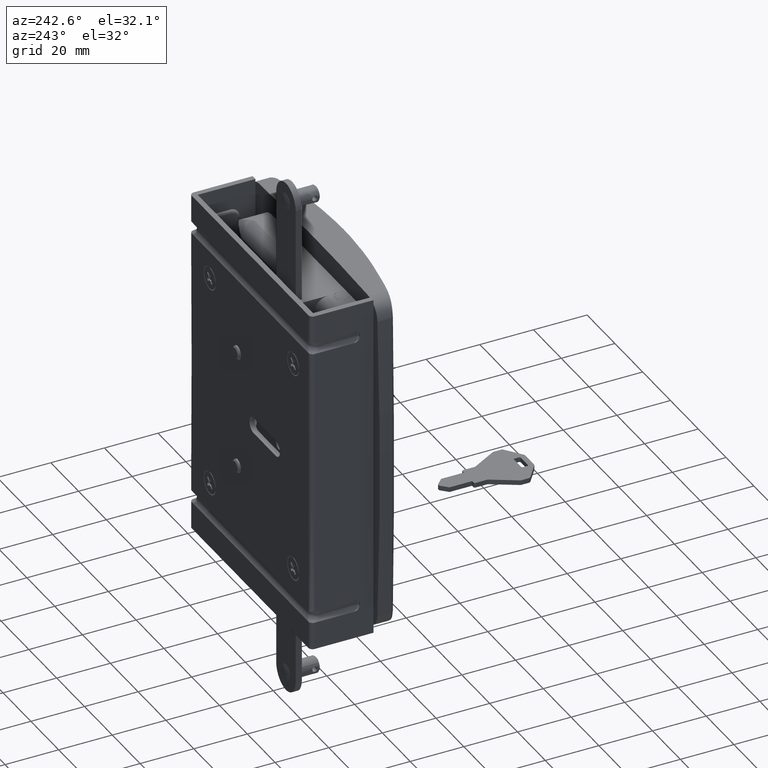
[diagram: clean part render]
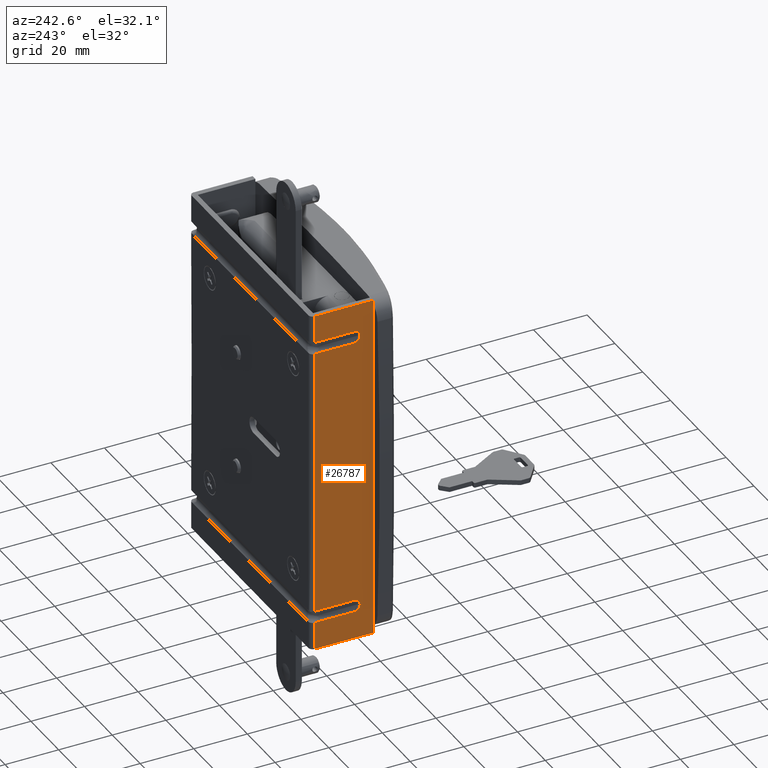
[diagram: same view with one face highlighted and labeled with its STEP entity id]
A machine part, auxiliary view. The second image highlights one B-rep face of the part: STEP entity #26787.
In plain terms, the highlighted face is a freeform B-spline surface patch.
Its self-contained STEP definition (entity closure, byte-faithful):
#18139=CARTESIAN_POINT('',(3.500008000000090,22.500000000000000,-65.0));
#18140=VERTEX_POINT('',#18139);
#18153=CARTESIAN_POINT('',(3.500008000000090,22.500000000000799,-54.739134594214100));
#18154=VERTEX_POINT('',#18153);
#18155=CARTESIAN_POINT('',(3.500008000000090,22.500000000000799,-54.739134594214100));
#18156=CARTESIAN_POINT('',(3.500008000000090,22.500000000000000,-65.0));
#18157=QUASI_UNIFORM_CURVE('',1,(#18155,#18156),.UNSPECIFIED.,.F.,.U.);
#18158=EDGE_CURVE('',#18154,#18140,#18157,.T.);
#18213=CARTESIAN_POINT('',(3.500008000000090,22.500000000000000,-50.260865405788898));
#18214=VERTEX_POINT('',#18213);
#18246=CARTESIAN_POINT('',(3.500008000000090,22.500000000000849,50.260865405785999));
#18247=VERTEX_POINT('',#18246);
#18248=CARTESIAN_POINT('',(3.500008000000090,22.500000000000849,50.260865405785999));
#18249=CARTESIAN_POINT('',(3.500008000000090,22.500000000000000,-50.260865405788898));
#18250=QUASI_UNIFORM_CURVE('',1,(#18248,#18249),.UNSPECIFIED.,.F.,.U.);
#18251=EDGE_CURVE('',#18247,#18214,#18250,.T.);
#18473=CARTESIAN_POINT('',(3.500008000000090,22.500000000000000,54.739134594211201));
#18474=VERTEX_POINT('',#18473);
#18506=CARTESIAN_POINT('',(3.500008000000090,22.500000000000000,65.0));
#18507=VERTEX_POINT('',#18506);
#18508=CARTESIAN_POINT('',(3.500008000000090,22.500000000000000,65.0));
#18509=CARTESIAN_POINT('',(3.500008000000090,22.500000000000000,54.739134594211201));
#18510=QUASI_UNIFORM_CURVE('',1,(#18508,#18509),.UNSPECIFIED.,.F.,.U.);
#18511=EDGE_CURVE('',#18507,#18474,#18510,.T.);
#22913=CARTESIAN_POINT('',(3.500008000000055,6.841972403075991,-54.549534865325597));
#22914=VERTEX_POINT('',#22913);
#22968=CARTESIAN_POINT('',(3.500008000000055,7.736068000000000,-54.736068000000003));
#22969=VERTEX_POINT('',#22968);
#22977=CARTESIAN_POINT('',(3.500008000000055,7.736068000000000,-54.736068000000003));
#22978=CARTESIAN_POINT('',(3.500008000000055,7.429432813155904,-54.736245915933381));
#22979=CARTESIAN_POINT('',(3.500008000000060,7.122940132156630,-54.672385329724399));
#22980=CARTESIAN_POINT('',(3.500008000000055,6.841972403075991,-54.549534865325597));
#22981=B_SPLINE_CURVE_WITH_KNOTS('',3,(#22977,#22978,#22979,#22980),.UNSPECIFIED.,.F.,.U.,(4,4),(0.000000038760209,0.919843180858561),.UNSPECIFIED.);
#22982=EDGE_CURVE('',#22969,#22914,#22981,.T.);
#23114=CARTESIAN_POINT('',(3.500008000000055,6.841972403075670,-50.450465134674602));
#23115=VERTEX_POINT('',#23114);
#23195=CARTESIAN_POINT('',(3.500008000000055,7.736068000000000,-50.263931999999997));
#23196=VERTEX_POINT('',#23195);
#23197=CARTESIAN_POINT('',(3.500008000000055,6.841972403075670,-50.450465134674602));
#23198=CARTESIAN_POINT('',(3.500008000000055,7.122958191322528,-50.327693359245458));
#23199=CARTESIAN_POINT('',(3.500008000000063,7.429415077077469,-50.263676784901747));
#23200=CARTESIAN_POINT('',(3.500008000000055,7.736068000000000,-50.263931999999997));
#23201=B_SPLINE_CURVE_WITH_KNOTS('',3,(#23197,#23198,#23199,#23200),.UNSPECIFIED.,.F.,.U.,(4,4),(0.000000038760078,0.919843180858934),.UNSPECIFIED.);
#23202=EDGE_CURVE('',#23115,#23196,#23201,.T.);
#24911=CARTESIAN_POINT('',(3.500008000000090,22.314239309282399,-54.736068000000103));
#24912=VERTEX_POINT('',#24911);
#24913=CARTESIAN_POINT('',(3.500008000000090,22.314239309282399,-54.736068000000103));
#24914=CARTESIAN_POINT('',(3.500008000000090,22.500000000000799,-54.739134594214100));
#24915=QUASI_UNIFORM_CURVE('',1,(#24913,#24914),.UNSPECIFIED.,.F.,.U.);
#24916=EDGE_CURVE('',#24912,#18154,#24915,.T.);
#25118=CARTESIAN_POINT('',(3.500008000000090,22.314239309285998,-50.263931999999997));
#25119=VERTEX_POINT('',#25118);
#25120=CARTESIAN_POINT('',(3.500008000000090,22.500000000000000,-50.260865405788898));
#25121=CARTESIAN_POINT('',(3.500008000000090,22.314239309285998,-50.263931999999997));
#25122=QUASI_UNIFORM_CURVE('',1,(#25120,#25121),.UNSPECIFIED.,.F.,.U.);
#25123=EDGE_CURVE('',#18214,#25119,#25122,.T.);
#25331=CARTESIAN_POINT('',(3.500008000000055,7.736068000000000,-54.736068000000003));
#25332=CARTESIAN_POINT('',(3.500008000000090,22.314239309282399,-54.736068000000103));
#25333=QUASI_UNIFORM_CURVE('',1,(#25331,#25332),.UNSPECIFIED.,.F.,.U.);
#25334=EDGE_CURVE('',#22969,#24912,#25333,.T.);
#25368=CARTESIAN_POINT('',(3.500008000000090,22.314239309285998,-50.263931999999997));
#25369=CARTESIAN_POINT('',(3.500008000000055,7.736068000000000,-50.263931999999997));
#25370=QUASI_UNIFORM_CURVE('',1,(#25368,#25369),.UNSPECIFIED.,.F.,.U.);
#25371=EDGE_CURVE('',#25119,#23196,#25370,.T.);
#25458=CARTESIAN_POINT('',(3.500008000000055,6.841972403075991,-54.549534865325597));
#25459=CARTESIAN_POINT('',(3.500008000000056,6.619194878353357,-54.452447719278481));
#25460=CARTESIAN_POINT('',(3.500008000000053,6.159537891449367,-54.155035226995729));
#25461=CARTESIAN_POINT('',(3.500008000000061,5.719035347482186,-53.555941873047438));
#25462=CARTESIAN_POINT('',(3.500008000000054,5.487965428284046,-52.829357606794680));
#25463=CARTESIAN_POINT('',(3.500008000000050,5.487993729272164,-52.198083689598377));
#25464=CARTESIAN_POINT('',(3.500008000000055,5.674455924684676,-51.573308162412012));
#25465=CARTESIAN_POINT('',(3.500008000000110,6.055375330995735,-50.942481950559312));
#25466=CARTESIAN_POINT('',(3.500007999999985,6.519778814557712,-50.590271319098640));
#25467=CARTESIAN_POINT('',(3.500008000000055,6.841972403075670,-50.450465134674602));
#25468=B_SPLINE_CURVE_WITH_KNOTS('',3,(#25458,#25459,#25460,#25461,#25462,#25463,#25464,#25465,#25466,#25467),.UNSPECIFIED.,.F.,.U.,(4,1,1,1,1,1,1,4),(0.000000929867349,0.729141777087850,1.620489941564832,2.187714494281424,2.997751202982878,3.483935838676820,4.132170419389586,5.185462579480464),.UNSPECIFIED.);
#25469=EDGE_CURVE('',#22914,#23115,#25468,.T.);
#25640=CARTESIAN_POINT('',(3.500008000000055,6.841972403075630,50.450465134674602));
#25641=VERTEX_POINT('',#25640);
#25695=CARTESIAN_POINT('',(3.500008000000055,7.736068000000000,50.263931999999997));
#25696=VERTEX_POINT('',#25695);
#25704=CARTESIAN_POINT('',(3.500008000000055,7.736068000000000,50.263931999999997));
#25705=CARTESIAN_POINT('',(3.500008000000053,7.429430596992299,50.263751613380563));
#25706=CARTESIAN_POINT('',(3.500008000000060,7.122942253458079,50.327616400478973));
#25707=CARTESIAN_POINT('',(3.500008000000055,6.841972403075630,50.450465134674602));
#25708=B_SPLINE_CURVE_WITH_KNOTS('',3,(#25704,#25705,#25706,#25707),.UNSPECIFIED.,.F.,.U.,(4,4),(0.000000038760239,0.919843180858975),.UNSPECIFIED.);
#25709=EDGE_CURVE('',#25696,#25641,#25708,.T.);
#25841=CARTESIAN_POINT('',(3.500008000000055,6.841972403076030,54.549534865325597));
#25842=VERTEX_POINT('',#25841);
#25922=CARTESIAN_POINT('',(3.500008000000055,7.736068000000000,54.736068000000003));
#25923=VERTEX_POINT('',#25922);
#25924=CARTESIAN_POINT('',(3.500008000000055,6.841972403076030,54.549534865325597));
#25925=CARTESIAN_POINT('',(3.500008000000061,7.122957352669540,54.672307149727722));
#25926=CARTESIAN_POINT('',(3.500008000000054,7.429417316393885,54.736322014125967));
#25927=CARTESIAN_POINT('',(3.500008000000055,7.736068000000000,54.736068000000003));
#25928=B_SPLINE_CURVE_WITH_KNOTS('',3,(#25924,#25925,#25926,#25927),.UNSPECIFIED.,.F.,.U.,(4,4),(0.000000038760115,0.919843180858522),.UNSPECIFIED.);
#25929=EDGE_CURVE('',#25842,#25923,#25928,.T.);
#26030=CARTESIAN_POINT('',(3.500008000000090,22.314239309282399,54.736068000000103));
#26031=VERTEX_POINT('',#26030);
#26032=CARTESIAN_POINT('',(3.500008000000090,22.500000000000000,54.739134594211201));
#26033=CARTESIAN_POINT('',(3.500008000000090,22.314239309282399,54.736068000000103));
#26034=QUASI_UNIFORM_CURVE('',1,(#26032,#26033),.UNSPECIFIED.,.F.,.U.);
#26035=EDGE_CURVE('',#18474,#26031,#26034,.T.);
#26264=CARTESIAN_POINT('',(3.500008000000090,22.314239309282300,50.263931999999997));
#26265=VERTEX_POINT('',#26264);
#26266=CARTESIAN_POINT('',(3.500008000000090,22.314239309282300,50.263931999999997));
#26267=CARTESIAN_POINT('',(3.500008000000090,22.500000000000849,50.260865405785999));
#26268=QUASI_UNIFORM_CURVE('',1,(#26266,#26267),.UNSPECIFIED.,.F.,.U.);
#26269=EDGE_CURVE('',#26265,#18247,#26268,.T.);
#26337=CARTESIAN_POINT('',(3.500008000000055,7.736068000000000,50.263931999999997));
#26338=CARTESIAN_POINT('',(3.500008000000090,22.314239309282300,50.263931999999997));
#26339=QUASI_UNIFORM_CURVE('',1,(#26337,#26338),.UNSPECIFIED.,.F.,.U.);
#26340=EDGE_CURVE('',#25696,#26265,#26339,.T.);
#26374=CARTESIAN_POINT('',(3.500008000000090,22.314239309282399,54.736068000000103));
#26375=CARTESIAN_POINT('',(3.500008000000055,7.736068000000000,54.736068000000003));
#26376=QUASI_UNIFORM_CURVE('',1,(#26374,#26375),.UNSPECIFIED.,.F.,.U.);
#26377=EDGE_CURVE('',#26031,#25923,#26376,.T.);
#26415=CARTESIAN_POINT('',(3.500008000000055,6.841972403075630,50.450465134674602));
#26416=CARTESIAN_POINT('',(3.500008000000064,6.495007579644369,50.600998455952841));
#26417=CARTESIAN_POINT('',(3.500008000000047,5.969256982383135,51.014844277205398));
#26418=CARTESIAN_POINT('',(3.500008000000059,5.583318483674523,51.773397660247689));
#26419=CARTESIAN_POINT('',(3.500008000000054,5.481834564915712,52.391266002680609));
#26420=CARTESIAN_POINT('',(3.500008000000066,5.523103859321893,52.960241143919653));
#26421=CARTESIAN_POINT('',(3.500008000000063,5.732736076471220,53.580818835487953));
#26422=CARTESIAN_POINT('',(3.500008000000027,6.182649136457603,54.169851255649498));
#26423=CARTESIAN_POINT('',(3.500008000000079,6.619159197550009,54.452468279646887));
#26424=CARTESIAN_POINT('',(3.500008000000055,6.841972403076030,54.549534865325597));
#26425=B_SPLINE_CURVE_WITH_KNOTS('',3,(#26415,#26416,#26417,#26418,#26419,#26420,#26421,#26422,#26423,#26424),.UNSPECIFIED.,.F.,.U.,(4,1,1,1,1,1,1,4),(0.000000929870140,1.134305593378870,1.944569388519694,2.511759362238673,2.997751202985933,3.646023855432809,4.456313602314784,5.185462579480460),.UNSPECIFIED.);
#26426=EDGE_CURVE('',#25641,#25842,#26425,.T.);
#26451=CARTESIAN_POINT('',(3.500008000000095,0.500000000000114,65.0));
#26452=VERTEX_POINT('',#26451);
#26453=CARTESIAN_POINT('',(3.500008000000095,0.500000000000114,65.0));
#26454=CARTESIAN_POINT('',(3.500008000000090,22.500000000000000,65.0));
#26455=QUASI_UNIFORM_CURVE('',1,(#26453,#26454),.UNSPECIFIED.,.F.,.U.);
#26456=EDGE_CURVE('',#26452,#18507,#26455,.T.);
#26540=CARTESIAN_POINT('',(3.500008000000095,0.500000000000114,-65.0));
#26541=VERTEX_POINT('',#26540);
#26547=CARTESIAN_POINT('',(3.500008000000095,0.500000000000114,-65.0));
#26548=CARTESIAN_POINT('',(3.500008000000090,22.500000000000000,-65.0));
#26549=QUASI_UNIFORM_CURVE('',1,(#26547,#26548),.UNSPECIFIED.,.F.,.U.);
#26550=EDGE_CURVE('',#26541,#18140,#26549,.T.);
#26562=CARTESIAN_POINT('',(3.500008000000095,0.500000000000114,-65.0));
#26563=CARTESIAN_POINT('',(3.500008000000095,0.500000000000114,65.0));
#26564=QUASI_UNIFORM_CURVE('',1,(#26562,#26563),.UNSPECIFIED.,.F.,.U.);
#26565=EDGE_CURVE('',#26541,#26452,#26564,.T.);
#26760=CARTESIAN_POINT('',(3.500008000000095,-0.598899957359653,-71.493499748034765));
#26761=CARTESIAN_POINT('',(3.500008000000095,23.598900547446600,-71.493499748034765));
#26762=CARTESIAN_POINT('',(3.500008000000095,-0.598899957359653,71.493503234906484));
#26763=CARTESIAN_POINT('',(3.500008000000095,23.598900547446600,71.493503234906484));
#26764=B_SPLINE_SURFACE_WITH_KNOTS('',1,1,((#26760,#26762),(#26761,#26763)),.UNSPECIFIED.,.F.,.F.,.U.,(2,2),(2,2),(0.0,24.197800504806249),(0.0,142.987002982941310),.UNSPECIFIED.);
#26765=ORIENTED_EDGE('',*,*,#26456,.T.);
#26766=ORIENTED_EDGE('',*,*,#18511,.T.);
#26767=ORIENTED_EDGE('',*,*,#26035,.T.);
#26768=ORIENTED_EDGE('',*,*,#26377,.T.);
#26769=ORIENTED_EDGE('',*,*,#25929,.F.);
#26770=ORIENTED_EDGE('',*,*,#26426,.F.);
#26771=ORIENTED_EDGE('',*,*,#25709,.F.);
#26772=ORIENTED_EDGE('',*,*,#26340,.T.);
#26773=ORIENTED_EDGE('',*,*,#26269,.T.);
#26774=ORIENTED_EDGE('',*,*,#18251,.T.);
#26775=ORIENTED_EDGE('',*,*,#25123,.T.);
#26776=ORIENTED_EDGE('',*,*,#25371,.T.);
#26777=ORIENTED_EDGE('',*,*,#23202,.F.);
#26778=ORIENTED_EDGE('',*,*,#25469,.F.);
#26779=ORIENTED_EDGE('',*,*,#22982,.F.);
#26780=ORIENTED_EDGE('',*,*,#25334,.T.);
#26781=ORIENTED_EDGE('',*,*,#24916,.T.);
#26782=ORIENTED_EDGE('',*,*,#18158,.T.);
#26783=ORIENTED_EDGE('',*,*,#26550,.F.);
#26784=ORIENTED_EDGE('',*,*,#26565,.T.);
#26785=EDGE_LOOP('',(#26765,#26766,#26767,#26768,#26769,#26770,#26771,#26772,#26773,#26774,#26775,#26776,#26777,#26778,#26779,#26780,#26781,#26782,#26783,#26784));
#26786=FACE_OUTER_BOUND('',#26785,.T.);
#26787=ADVANCED_FACE('',(#26786),#26764,.F.);